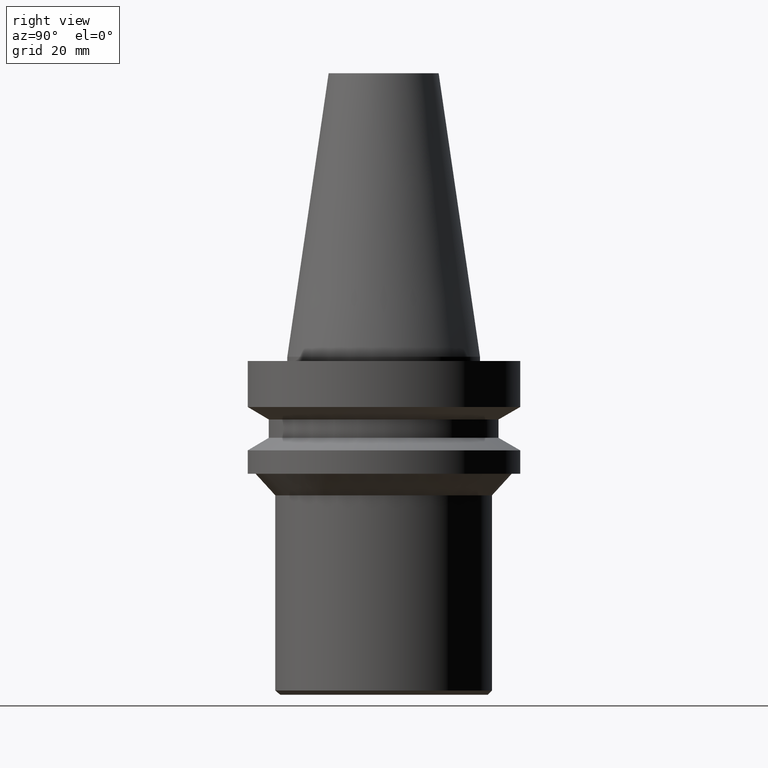
[diagram: clean part render]
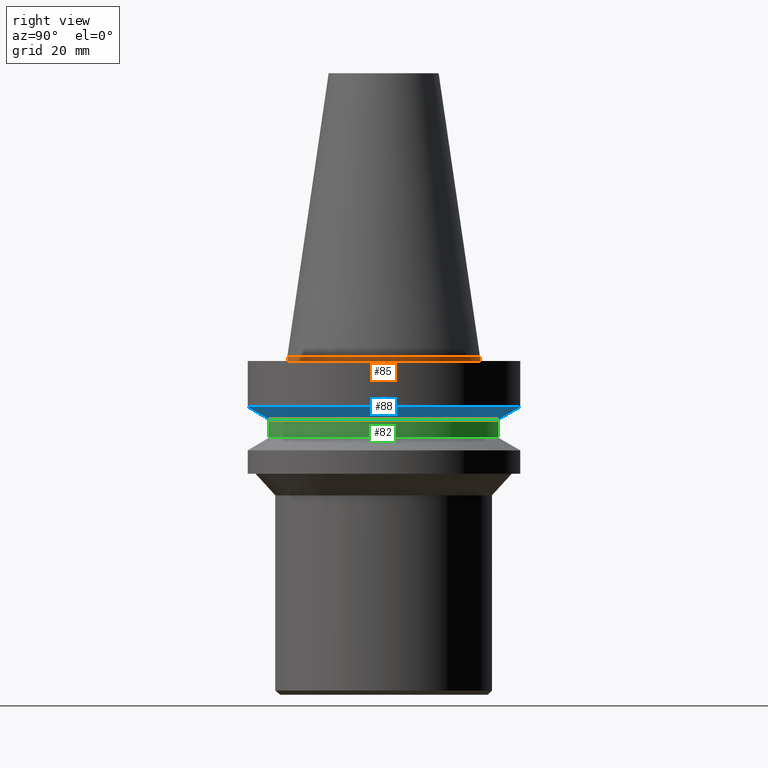
[diagram: same view with three faces highlighted in distinct colors, each labeled with its STEP entity id]
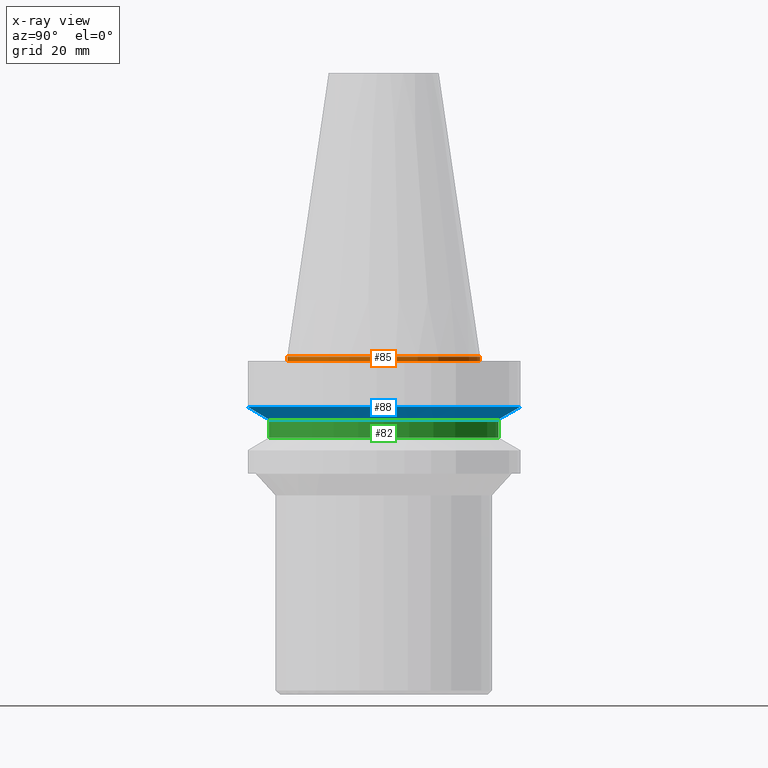
[diagram: x-ray of the same camera — body ghosted, the three highlighted faces saturated]
A machine part, right view with three faces highlighted in distinct colors.
The next image is the same camera in x-ray (body ghosted, the three faces saturated) — at least one of them is partly hidden behind the body in this view.
Their STEP definitions:

[orange] entity #85 — the highlighted cylindrical surface (bore or boss wall) has radius 22.225 mm, axis along (-0, -0, 1).
#85=ADVANCED_FACE('',(#118,#119),#120,.T.);
#118=FACE_BOUND('',#158,.T.);
#119=FACE_BOUND('',#159,.T.);
#120=CYLINDRICAL_SURFACE('',#160,22.225);
#158=EDGE_LOOP('',(#218));
#159=EDGE_LOOP('',(#219));
#160=AXIS2_PLACEMENT_3D('',#220,#221,#222);
#218=ORIENTED_EDGE('',*,*,#248,.F.);
#219=ORIENTED_EDGE('',*,*,#247,.T.);
#220=CARTESIAN_POINT('',(3.06161699786803E-017,6.12323399573607E-017,-0.499999999999943));
#221=DIRECTION('',(-6.12323399573677E-017,-1.22464679914735E-016,1.0));
#222=DIRECTION('',(-1.23259516440783E-032,1.0,1.22464679914735E-016));
#247=EDGE_CURVE('',#269,#269,#270,.T.);
#248=EDGE_CURVE('',#271,#271,#272,.T.);
#269=VERTEX_POINT('',#295);
#270=CIRCLE('',#296,22.225);
#271=VERTEX_POINT('',#297);
#272=CIRCLE('',#298,22.225);
#295=CARTESIAN_POINT('',(-3.75194118486812E-030,22.225,5.9521777511105E-014));
#296=AXIS2_PLACEMENT_3D('',#330,#331,#332);
#297=CARTESIAN_POINT('',(6.12323399573639E-017,22.225,-0.99999999999994));
#298=AXIS2_PLACEMENT_3D('',#333,#334,#335);
#330=CARTESIAN_POINT('',(-3.48065554802404E-030,-6.96131109604808E-030,5.6843418860808E-014));
#331=DIRECTION('',(6.12323399573677E-017,1.22464679914735E-016,-1.0));
#332=DIRECTION('',(-1.23259516440783E-032,1.0,1.22464679914735E-016));
#333=CARTESIAN_POINT('',(6.12323399573642E-017,1.22464679914728E-016,-0.999999999999943));
#334=DIRECTION('',(6.12323399573677E-017,1.22464679914735E-016,-1.0));
#335=DIRECTION('',(-1.23259516440783E-032,1.0,1.22464679914735E-016));

[blue] entity #88 — the highlighted conical surface has half-angle 60 deg.
#88=ADVANCED_FACE('',(#127,#128),#129,.T.);
#127=FACE_BOUND('',#167,.T.);
#128=FACE_BOUND('',#168,.T.);
#129=CONICAL_SURFACE('',#169,29.0000000000001,1.04719755119661);
#167=EDGE_LOOP('',(#233));
#168=EDGE_LOOP('',(#234));
#169=AXIS2_PLACEMENT_3D('',#235,#236,#237);
#233=ORIENTED_EDGE('',*,*,#245,.F.);
#234=ORIENTED_EDGE('',*,*,#250,.T.);
#235=CARTESIAN_POINT('',(7.98676413399201E-016,1.5973528267984E-015,-13.043375672974));
#236=DIRECTION('',(-6.12323399573677E-017,-1.22464679914735E-016,1.0));
#237=DIRECTION('',(-1.23259516440783E-032,1.0,1.22464679914735E-016));
#245=EDGE_CURVE('',#265,#265,#266,.T.);
#250=EDGE_CURVE('',#275,#275,#276,.T.);
#265=VERTEX_POINT('',#291);
#266=CIRCLE('',#292,26.5000000000001);
#275=VERTEX_POINT('',#301);
#276=CIRCLE('',#302,31.5000000000001);
#291=CARTESIAN_POINT('',(8.87057683292942E-016,26.5000000000001,-14.486751345948));
#292=AXIS2_PLACEMENT_3D('',#324,#325,#326);
#301=CARTESIAN_POINT('',(7.1029514350546E-016,31.5000000000001,-11.5999999999999));
#302=AXIS2_PLACEMENT_3D('',#339,#340,#341);
#324=CARTESIAN_POINT('',(8.87057683292942E-016,1.77411536658588E-015,-14.486751345948));
#325=DIRECTION('',(6.12323399573677E-017,1.22464679914735E-016,-1.0));
#326=DIRECTION('',(-1.23259516440783E-032,1.0,1.22464679914735E-016));
#339=CARTESIAN_POINT('',(7.10295143505461E-016,1.42059028701092E-015,-11.5999999999999));
#340=DIRECTION('',(6.12323399573677E-017,1.22464679914735E-016,-1.0));
#341=DIRECTION('',(-1.23259516440783E-032,1.0,1.22464679914735E-016));

[green] entity #82 — the highlighted cylindrical surface (bore or boss wall) has radius 26.5 mm, axis along (-0, -0, 1).
#82=ADVANCED_FACE('',(#110,#111),#112,.T.);
#110=FACE_BOUND('',#150,.T.);
#111=FACE_BOUND('',#151,.T.);
#112=CYLINDRICAL_SURFACE('',#152,26.5000000000001);
#150=EDGE_LOOP('',(#204));
#151=EDGE_LOOP('',(#205));
#152=AXIS2_PLACEMENT_3D('',#206,#207,#208);
#204=ORIENTED_EDGE('',*,*,#239,.F.);
#205=ORIENTED_EDGE('',*,*,#245,.T.);
#206=CARTESIAN_POINT('',(1.0164568432923E-015,2.03291368658459E-015,-16.5999999999999));
#207=DIRECTION('',(-6.12323399573677E-017,-1.22464679914735E-016,1.0));
#208=DIRECTION('',(-1.23259516440783E-032,1.0,1.22464679914735E-016));
#239=EDGE_CURVE('',#253,#253,#254,.T.);
#245=EDGE_CURVE('',#265,#265,#266,.T.);
#253=VERTEX_POINT('',#279);
#254=CIRCLE('',#280,26.5000000000001);
#265=VERTEX_POINT('',#291);
#266=CIRCLE('',#292,26.5000000000001);
#279=CARTESIAN_POINT('',(1.14585600329165E-015,26.5000000000001,-18.7132486540518));
#280=AXIS2_PLACEMENT_3D('',#306,#307,#308);
#291=CARTESIAN_POINT('',(8.87057683292942E-016,26.5000000000001,-14.486751345948));
#292=AXIS2_PLACEMENT_3D('',#324,#325,#326);
#306=CARTESIAN_POINT('',(1.14585600329165E-015,2.2917120065833E-015,-18.7132486540518));
#307=DIRECTION('',(6.12323399573677E-017,1.22464679914735E-016,-1.0));
#308=DIRECTION('',(-1.23259516440783E-032,1.0,1.22464679914735E-016));
#324=CARTESIAN_POINT('',(8.87057683292942E-016,1.77411536658588E-015,-14.486751345948));
#325=DIRECTION('',(6.12323399573677E-017,1.22464679914735E-016,-1.0));
#326=DIRECTION('',(-1.23259516440783E-032,1.0,1.22464679914735E-016));